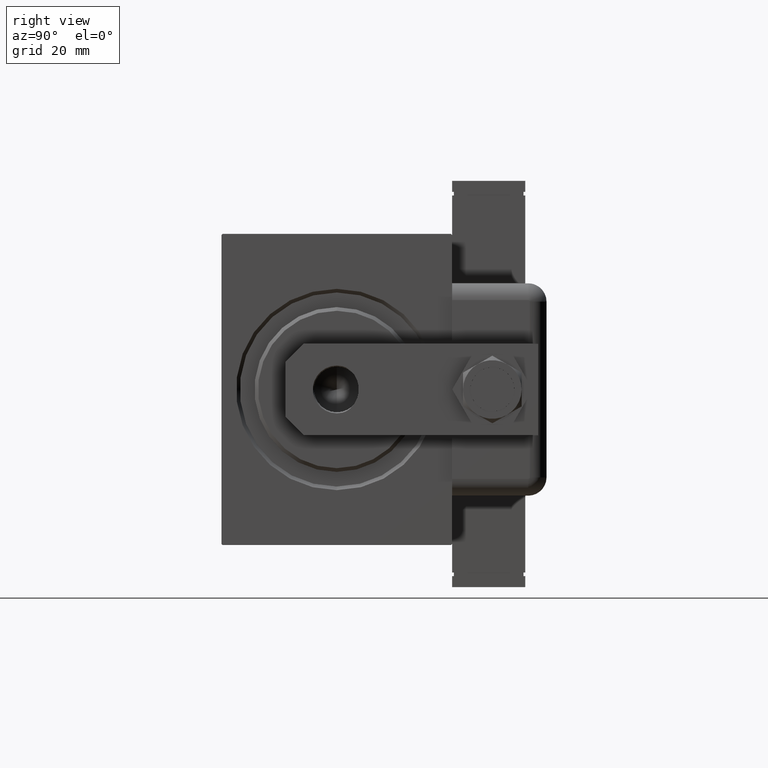
[diagram: clean part render]
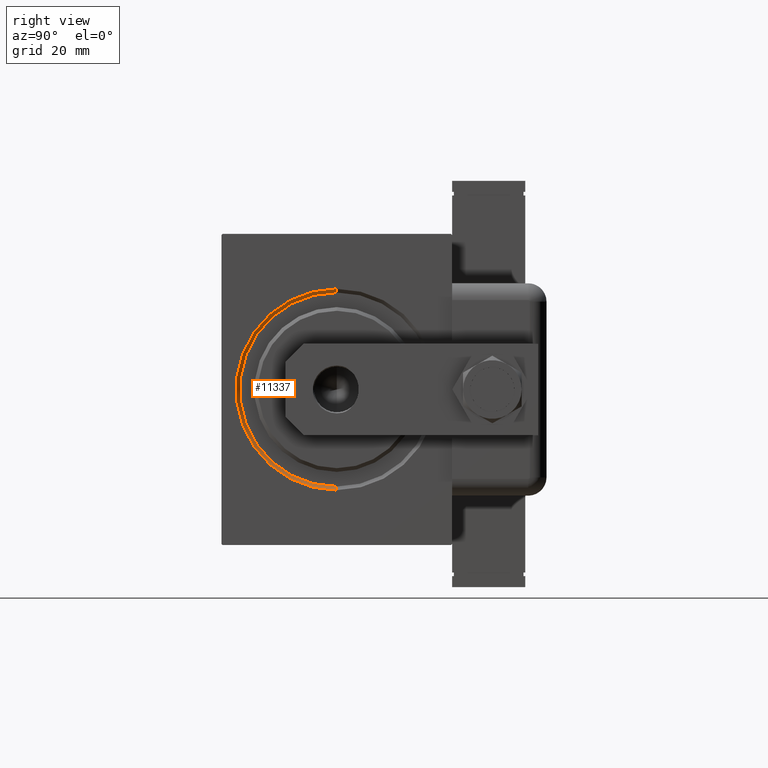
[diagram: same view with one face highlighted and labeled with its STEP entity id]
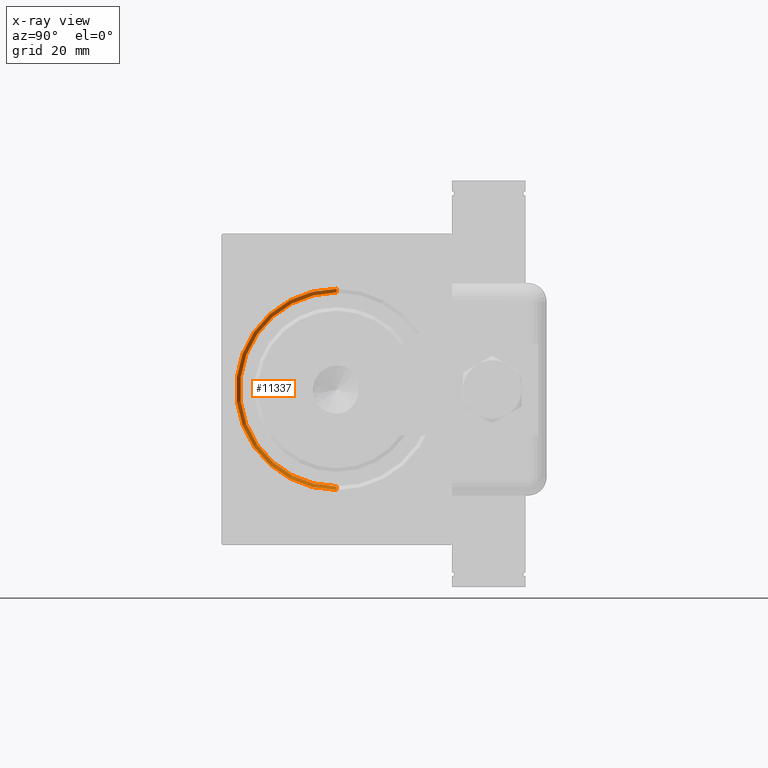
[diagram: x-ray of the same camera — body ghosted, the highlighted face saturated]
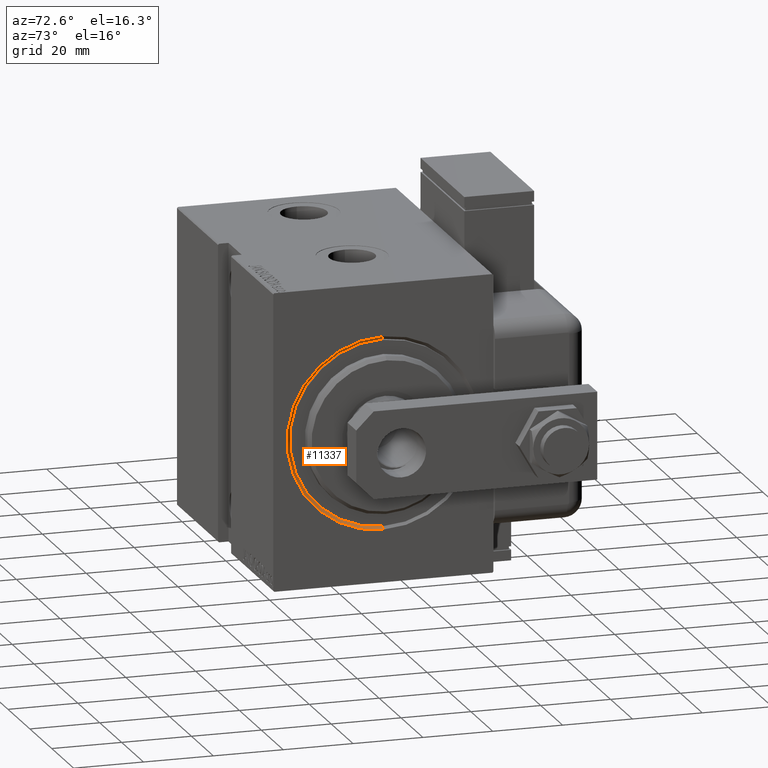
[diagram: same view with one face highlighted and labeled with its STEP entity id]
A machine part, right view. The second image highlights one B-rep face of the part: STEP entity #11337.
The next image is the same camera in x-ray: the body ghosted, the highlighted face saturated — about 0% of this face is hidden behind the body in this view.
A second angle (auxiliary view) of the same face is appended — the face is thin or edge-on in the first view.
In plain terms, the highlighted conical surface has half-angle 45 deg.
Its self-contained STEP definition (entity closure, byte-faithful):
#2618 = ORIENTED_EDGE ( 'NONE', *, *, #41645, .F. ) ;
#7295 = DIRECTION ( 'NONE',  ( -0.7071067811865401342, 8.659560562355022838E-17, -0.7071067811865549002 ) ) ;
#10318 = CARTESIAN_POINT ( 'NONE',  ( 0.9999999999999731326, 0.000000000000000000, 26.50000000000000355 ) ) ;
#11161 = CARTESIAN_POINT ( 'NONE',  ( 0.9999999999999731326, 3.245314017740486554E-15, -26.50000000000000355 ) ) ;
#11337 = ADVANCED_FACE ( 'NONE', ( #18298 ), #21434, .F. ) ;
#11353 = CARTESIAN_POINT ( 'NONE',  ( 0.9999999999999731326, 0.000000000000000000, 0.000000000000000000 ) ) ;
#11850 = CIRCLE ( 'NONE', #18467, 27.49999999999999645 ) ;
#12891 = CARTESIAN_POINT ( 'NONE',  ( 0.9999999999999731326, 3.245314017740486554E-15, -26.50000000000000355 ) ) ;
#14235 = AXIS2_PLACEMENT_3D ( 'NONE', #11353, #28510, #38019 ) ;
#14465 = CARTESIAN_POINT ( 'NONE',  ( 0.000000000000000000, 0.000000000000000000, 0.000000000000000000 ) ) ;
#15157 = EDGE_CURVE ( 'NONE', #23047, #42194, #33087, .T. ) ;
#15189 = CIRCLE ( 'NONE', #14235, 26.50000000000000355 ) ;
#18298 = FACE_OUTER_BOUND ( 'NONE', #25804, .T. ) ;
#18467 = AXIS2_PLACEMENT_3D ( 'NONE', #14465, #50348, #36988 ) ;
#21434 = CONICAL_SURFACE ( 'NONE', #35652, 26.50000000000000355, 0.7853981633974587151 ) ;
#23047 = VERTEX_POINT ( 'NONE', #12891 ) ;
#24002 = VECTOR ( 'NONE', #28357, 1000.000000000000000 ) ;
#24144 = EDGE_CURVE ( 'NONE', #46851, #23047, #15189, .T. ) ;
#25804 = EDGE_LOOP ( 'NONE', ( #52857, #32345, #49219, #2618 ) ) ;
#28357 = DIRECTION ( 'NONE',  ( -0.7071067811865401342, 0.000000000000000000, 0.7071067811865549002 ) ) ;
#28510 = DIRECTION ( 'NONE',  ( -1.000000000000000000, 0.000000000000000000, 0.000000000000000000 ) ) ;
#32345 = ORIENTED_EDGE ( 'NONE', *, *, #24144, .F. ) ;
#32464 = VERTEX_POINT ( 'NONE', #50767 ) ;
#33087 = LINE ( 'NONE', #11161, #56678 ) ;
#34821 = EDGE_CURVE ( 'NONE', #46851, #32464, #46763, .T. ) ;
#35652 = AXIS2_PLACEMENT_3D ( 'NONE', #45875, #36985, #55121 ) ;
#36985 = DIRECTION ( 'NONE',  ( -1.000000000000000000, 0.000000000000000000, 0.000000000000000000 ) ) ;
#36988 = DIRECTION ( 'NONE',  ( 0.000000000000000000, 0.000000000000000000, -1.000000000000000000 ) ) ;
#38019 = DIRECTION ( 'NONE',  ( 0.000000000000000000, 0.000000000000000000, -1.000000000000000000 ) ) ;
#41645 = EDGE_CURVE ( 'NONE', #42194, #32464, #11850, .T. ) ;
#42194 = VERTEX_POINT ( 'NONE', #58469 ) ;
#43448 = CARTESIAN_POINT ( 'NONE',  ( 0.9999999999999731326, 0.000000000000000000, 26.50000000000000355 ) ) ;
#45875 = CARTESIAN_POINT ( 'NONE',  ( 0.9999999999999731326, 0.000000000000000000, 0.000000000000000000 ) ) ;
#46763 = LINE ( 'NONE', #10318, #24002 ) ;
#46851 = VERTEX_POINT ( 'NONE', #43448 ) ;
#49219 = ORIENTED_EDGE ( 'NONE', *, *, #34821, .T. ) ;
#50348 = DIRECTION ( 'NONE',  ( 1.000000000000000000, 0.000000000000000000, 0.000000000000000000 ) ) ;
#50767 = CARTESIAN_POINT ( 'NONE',  ( 0.000000000000000000, 0.000000000000000000, 27.49999999999999645 ) ) ;
#52857 = ORIENTED_EDGE ( 'NONE', *, *, #15157, .F. ) ;
#55121 = DIRECTION ( 'NONE',  ( 0.000000000000000000, 0.000000000000000000, 1.000000000000000000 ) ) ;
#56678 = VECTOR ( 'NONE', #7295, 1000.000000000000000 ) ;
#58469 = CARTESIAN_POINT ( 'NONE',  ( 0.000000000000000000, 3.367778697655221307E-15, -27.49999999999999645 ) ) ;